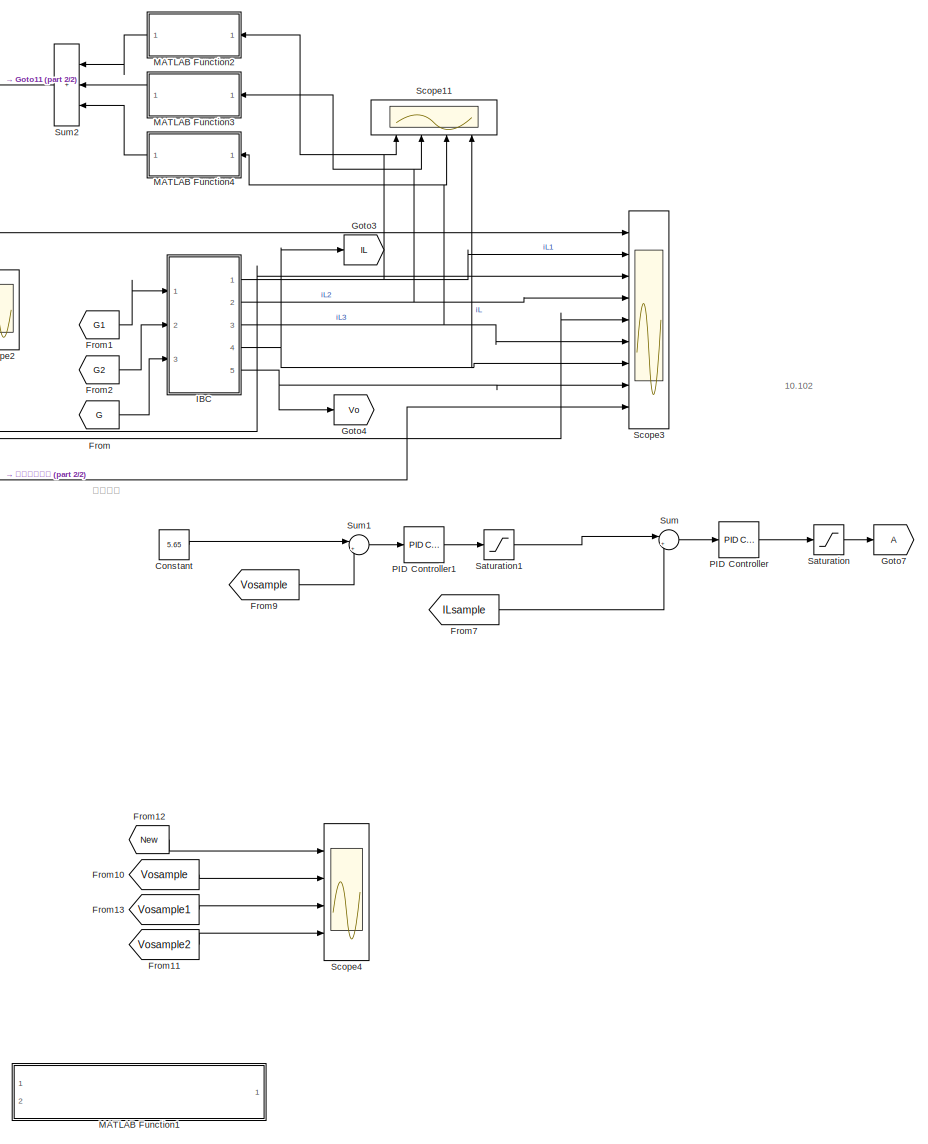
[diagram: root canvas - part 1/2, right side, full height]
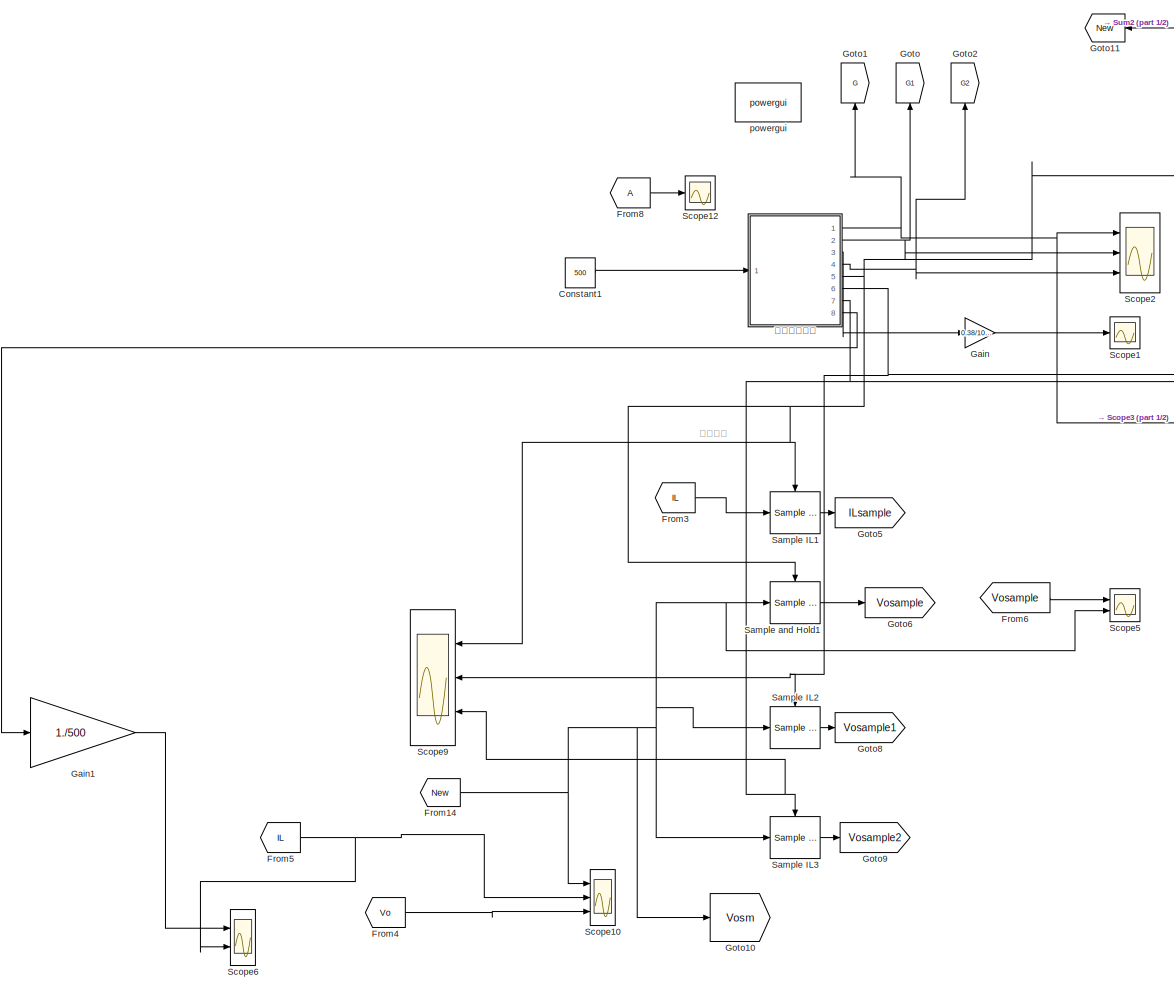
[diagram: root canvas - part 2/2, left side, full height]
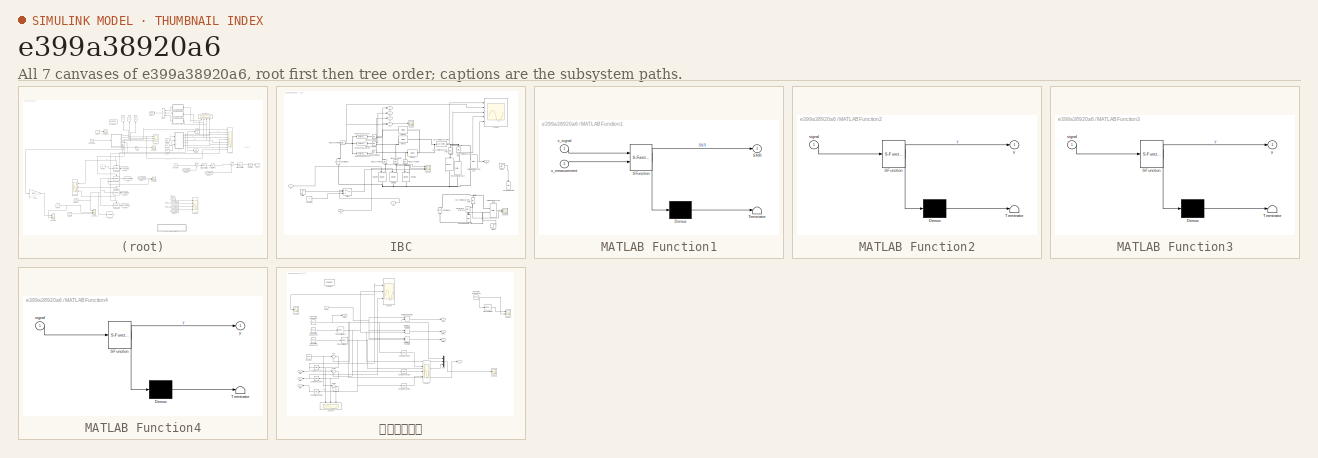
[diagram: thumbnail index - all 7 canvases of the model, root first then tree order]
MODEL slx_e399a38920a6
KIND model
CONFIG AbsTol = auto
CONFIG EnableMultiTasking = off
CONFIG FixedStep = auto
CONFIG InitFcn = Load=2;\nC=220e-6;\nL1=1000e-6;\nL2=1000e-6*(1+normrnd(0,0.05,[1,1]));\nL3=1000e-6*(1+normrnd(0,0.05,[1,1]));\nalp=1-0.5;\nV=2;
CONFIG MaxStep = auto
CONFIG MinStep = auto
CONFIG RelTol = 1e-3
CONFIG SampleTimeConstraint = Unconstrained
CONFIG SolverName = VariableStepAuto
CONFIG StartTime = 0.0
CONFIG StopTime = 0.02
BLOCK [Constant] Constant
  Value = 5.65
BLOCK [Constant] Constant1
  Value = 500
BLOCK [From] From
  GotoTag = G
BLOCK [From] From1
  GotoTag = G1
BLOCK [From] From10
  GotoTag = Vosample
BLOCK [From] From11
  GotoTag = Vosample2
BLOCK [From] From12
  GotoTag = New
  NameLocation = top
BLOCK [From] From13
  GotoTag = Vosample1
BLOCK [From] From14
  GotoTag = New
  NameLocation = top
BLOCK [From] From2
  GotoTag = G2
BLOCK [From] From3
  GotoTag = IL
BLOCK [From] From4
  GotoTag = Vo
BLOCK [From] From5
  GotoTag = IL
BLOCK [From] From6
  GotoTag = Vosample
BLOCK [From] From7
  GotoTag = ILsample
BLOCK [From] From8
BLOCK [From] From9
  GotoTag = Vosample
BLOCK [Gain] Gain
  Gain = 0.38/1000
BLOCK [Gain] Gain1
  Gain = 1./500
BLOCK [Goto] Goto
  GotoTag = G1
  NameLocation = right
BLOCK [Goto] Goto1
  GotoTag = G
  NameLocation = right
BLOCK [Goto] Goto10
  GotoTag = Vosm
BLOCK [Goto] Goto11
  GotoTag = New
  NameLocation = top
BLOCK [Goto] Goto2
  GotoTag = G2
  NameLocation = right
BLOCK [Goto] Goto3
  GotoTag = IL
BLOCK [Goto] Goto4
  GotoTag = Vo
BLOCK [Goto] Goto5
  GotoTag = ILsample
BLOCK [Goto] Goto6
  GotoTag = Vosample
BLOCK [Goto] Goto7
BLOCK [Goto] Goto8
  GotoTag = Vosample1
BLOCK [Goto] Goto9
  GotoTag = Vosample2
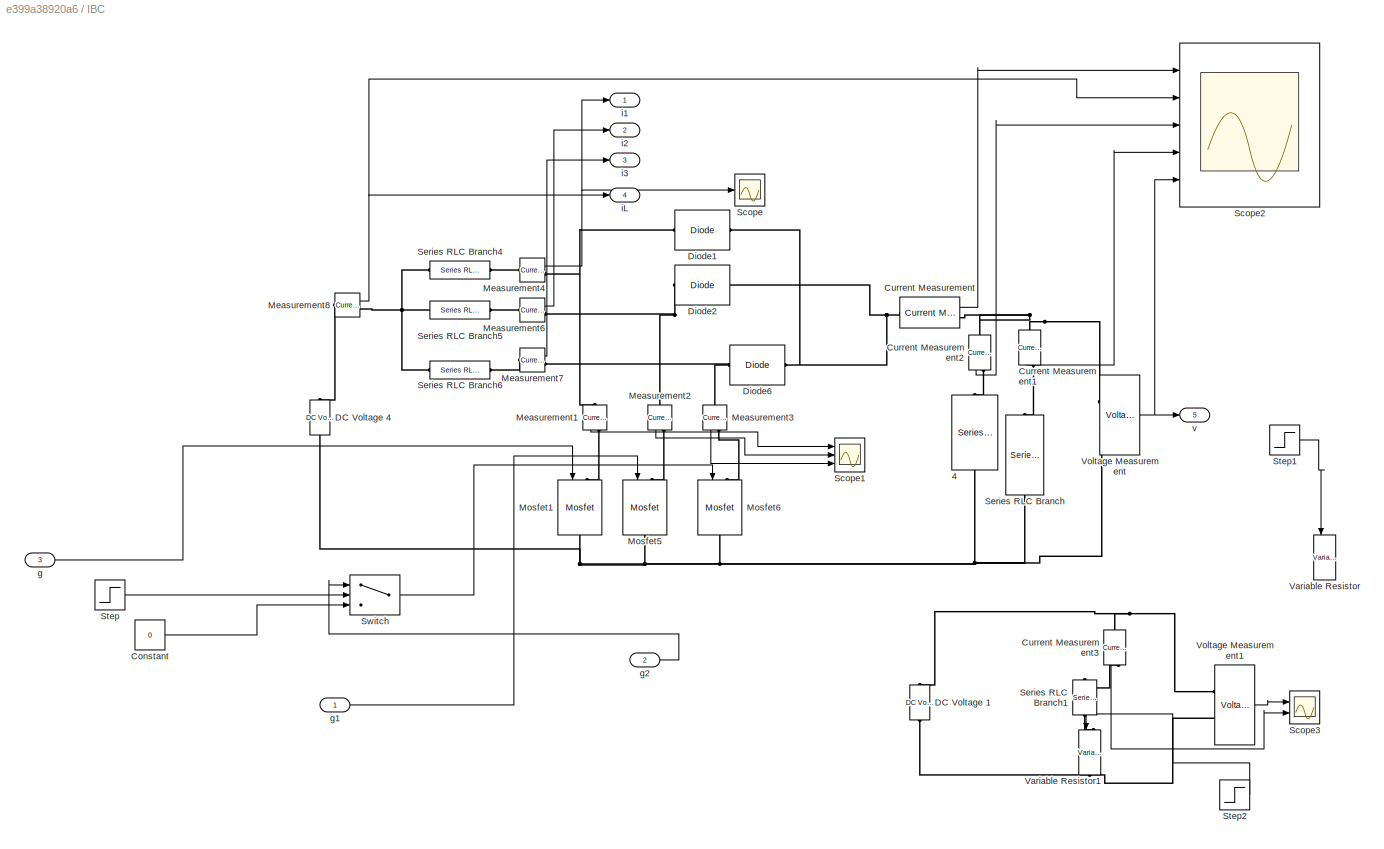
BLOCK [SubSystem] IBC
  Ports = [3, 5]
  RequestExecContextInheritance = off
BLOCK [Reference] IBC/    4  REF=spsSeriesRLCBranchLib/Series RLC Branch
  NameLocation = left
  Ports = [0, 0, 0, 0, 0, 1, 1]
  SourceBlock = spsSeriesRLCBranchLib/Series RLC Branch
  SourceProductBaseCode = PS
  SourceType = Series RLC Branch
BLOCK [Reference] IBC/ Measurement1  REF=spsCurrentMeasurementLib/Current Measurement
  NameLocation = left
  Ports = [0, 1, 0, 0, 0, 1, 1]
  SourceBlock = spsCurrentMeasurementLib/Current Measurement
  SourceProductBaseCode = PS
  SourceType = Current Measurement
BLOCK [Reference] IBC/ Measurement2  REF=spsCurrentMeasurementLib/Current Measurement
  NameLocation = left
  Ports = [0, 1, 0, 0, 0, 1, 1]
  SourceBlock = spsCurrentMeasurementLib/Current Measurement
  SourceProductBaseCode = PS
  SourceType = Current Measurement
BLOCK [Reference] IBC/ Measurement3  REF=spsCurrentMeasurementLib/Current Measurement
  NameLocation = left
  Ports = [0, 1, 0, 0, 0, 1, 1]
  SourceBlock = spsCurrentMeasurementLib/Current Measurement
  SourceProductBaseCode = PS
  SourceType = Current Measurement
BLOCK [Reference] IBC/ Measurement4  REF=spsCurrentMeasurementLib/Current Measurement
  Ports = [0, 1, 0, 0, 0, 1, 1]
  SourceBlock = spsCurrentMeasurementLib/Current Measurement
  SourceProductBaseCode = PS
  SourceType = Current Measurement
BLOCK [Reference] IBC/ Measurement6  REF=spsCurrentMeasurementLib/Current Measurement
  Ports = [0, 1, 0, 0, 0, 1, 1]
  SourceBlock = spsCurrentMeasurementLib/Current Measurement
  SourceProductBaseCode = PS
  SourceType = Current Measurement
BLOCK [Reference] IBC/ Measurement7  REF=spsCurrentMeasurementLib/Current Measurement
  Ports = [0, 1, 0, 0, 0, 1, 1]
  SourceBlock = spsCurrentMeasurementLib/Current Measurement
  SourceProductBaseCode = PS
  SourceType = Current Measurement
BLOCK [Reference] IBC/ Measurement8  REF=spsCurrentMeasurementLib/Current Measurement
  Ports = [0, 1, 0, 0, 0, 1, 1]
  SourceBlock = spsCurrentMeasurementLib/Current Measurement
  SourceProductBaseCode = PS
  SourceType = Current Measurement
BLOCK [Constant] IBC/Constant
  Value = 0
BLOCK [Reference] IBC/Current Measurement  REF=spsCurrentMeasurementLib/Current Measurement
  Ports = [0, 1, 0, 0, 0, 1, 1]
  SourceBlock = spsCurrentMeasurementLib/Current Measurement
  SourceProductBaseCode = PS
  SourceType = Current Measurement
  UserDataPersistent = on
BLOCK [Reference] IBC/Current Measurement1  REF=spsCurrentMeasurementLib/Current Measurement
  NameLocation = left
  Ports = [0, 1, 0, 0, 0, 1, 1]
  SourceBlock = spsCurrentMeasurementLib/Current Measurement
  SourceProductBaseCode = PS
  SourceType = Current Measurement
  UserDataPersistent = on
BLOCK [Reference] IBC/Current Measurement2  REF=spsCurrentMeasurementLib/Current Measurement
  NameLocation = left
  Ports = [0, 1, 0, 0, 0, 1, 1]
  SourceBlock = spsCurrentMeasurementLib/Current Measurement
  SourceProductBaseCode = PS
  SourceType = Current Measurement
  UserDataPersistent = on
BLOCK [Reference] IBC/Current Measurement3  REF=spsCurrentMeasurementLib/Current Measurement
  Commented = on
  NameLocation = left
  Ports = [0, 1, 0, 0, 0, 1, 1]
  SourceBlock = spsCurrentMeasurementLib/Current Measurement
  SourceProductBaseCode = PS
  SourceType = Current Measurement
  UserDataPersistent = on
BLOCK [Reference] IBC/DC Voltage 1  REF=spsDCVoltageSourceLib/DC Voltage Source
  Commented = on
  NameLocation = right
  Ports = [0, 0, 0, 0, 0, 1, 1]
  SourceBlock = spsDCVoltageSourceLib/DC Voltage Source
  SourceProductBaseCode = PS
  SourceType = DC Voltage Source
BLOCK [Reference] IBC/DC Voltage 4  REF=spsDCVoltageSourceLib/DC Voltage Source
  NameLocation = right
  Ports = [0, 0, 0, 0, 0, 1, 1]
  SourceBlock = spsDCVoltageSourceLib/DC Voltage Source
  SourceProductBaseCode = PS
  SourceType = DC Voltage Source
BLOCK [Reference] IBC/Diode1  REF=spsDiodeLib/Diode
  Ports = [0, 0, 0, 0, 0, 1, 1]
  SourceBlock = spsDiodeLib/Diode
  SourceProductBaseCode = PS
  SourceType = Diode
BLOCK [Reference] IBC/Diode2  REF=spsDiodeLib/Diode
  Ports = [0, 0, 0, 0, 0, 1, 1]
  SourceBlock = spsDiodeLib/Diode
  SourceProductBaseCode = PS
  SourceType = Diode
BLOCK [Reference] IBC/Diode6  REF=spsDiodeLib/Diode
  Ports = [0, 0, 0, 0, 0, 1, 1]
  SourceBlock = spsDiodeLib/Diode
  SourceProductBaseCode = PS
  SourceType = Diode
BLOCK [Reference] IBC/Mosfet1  REF=spsMosfetLib/Mosfet
  NameLocation = left
  Ports = [1, 0, 0, 0, 0, 1, 1]
  SourceBlock = spsMosfetLib/Mosfet
  SourceProductBaseCode = PS
  SourceType = Mosfet
BLOCK [Reference] IBC/Mosfet5  REF=spsMosfetLib/Mosfet
  NameLocation = left
  Ports = [1, 0, 0, 0, 0, 1, 1]
  SourceBlock = spsMosfetLib/Mosfet
  SourceProductBaseCode = PS
  SourceType = Mosfet
BLOCK [Reference] IBC/Mosfet6  REF=spsMosfetLib/Mosfet
  NameLocation = left
  Ports = [1, 0, 0, 0, 0, 1, 1]
  SourceBlock = spsMosfetLib/Mosfet
  SourceProductBaseCode = PS
  SourceType = Mosfet
BLOCK [Scope] IBC/Scope
  Floating = off
  NumInputPorts = 1
  Ports = [1]
  ScopeSpecificationString = Simulink.scopes.TimeScopeBlockCfg('CurrentConfiguration', extmgr.ConfigurationSet(extmgr.Configuration('Core','General UI',true),extmgr.Configuration('Core','Source UI',true),extmgr.Configuration('Sources','WiredSimulink',true,'DataLoggingVariableName','ScopeData1'),extmgr.Configuration('Visuals','Time Domain',true,'SerializedDisplays',{struct('MinYLimReal','-0.04996','MaxYLimReal','0.45188','YLab...<+1372ch>
BLOCK [Scope] IBC/Scope1
  Floating = off
  NumInputPorts = 3
  Ports = [3]
  ScopeSpecificationString = Simulink.scopes.TimeScopeBlockCfg('CurrentConfiguration', extmgr.ConfigurationSet(extmgr.Configuration('Core','General UI',true),extmgr.Configuration('Core','Source UI',true),extmgr.Configuration('Sources','WiredSimulink',true,'DataLoggingVariableName','ScopeData1'),extmgr.Configuration('Visuals','Time Domain',true,'SerializedDisplays',{struct('MinYLimReal','-0.05517','MaxYLimReal','0.4966','YLabe...<+2847ch>
BLOCK [Scope] IBC/Scope2
  Floating = off
  NumInputPorts = 5
  Ports = [5]
  ScopeSpecificationString = Simulink.scopes.TimeScopeBlockCfg('CurrentConfiguration', extmgr.ConfigurationSet(extmgr.Configuration('Core','General UI',true,'FigureColor',[0.941176470588235 0.941176470588235 0.941176470588235]),extmgr.Configuration('Core','Source UI',true),extmgr.Configuration('Sources','WiredSimulink',true,'DataLoggingVariableName','ScopeData2'),extmgr.Configuration('Visuals','Time Domain',true,'SerializedDi...<+4920ch>
BLOCK [Scope] IBC/Scope3
  Commented = on
  Floating = off
  NumInputPorts = 2
  Ports = [2]
  ScopeSpecificationString = Simulink.scopes.TimeScopeBlockCfg('CurrentConfiguration', extmgr.ConfigurationSet(extmgr.Configuration('Core','General UI',true),extmgr.Configuration('Core','Source UI',true),extmgr.Configuration('Sources','WiredSimulink',true,'DataLoggingVariableName','ScopeData1'),extmgr.Configuration('Visuals','Time Domain',true,'SerializedDisplays',{struct('MinYLimReal','1.74989','MaxYLimReal','4.25001','YLabe...<+1759ch>
BLOCK [Reference] IBC/Series RLC Branch  REF=spsSeriesRLCBranchLib/Series RLC Branch
  NameLocation = left
  Ports = [0, 0, 0, 0, 0, 1, 1]
  SourceBlock = spsSeriesRLCBranchLib/Series RLC Branch
  SourceProductBaseCode = PS
  SourceType = Series RLC Branch
BLOCK [Reference] IBC/Series RLC Branch1  REF=spsSeriesRLCBranchLib/Series RLC Branch
  Commented = on
  NameLocation = left
  Ports = [0, 0, 0, 0, 0, 1, 1]
  SourceBlock = spsSeriesRLCBranchLib/Series RLC Branch
  SourceProductBaseCode = PS
  SourceType = Series RLC Branch
BLOCK [Reference] IBC/Series RLC Branch4  REF=spsSeriesRLCBranchLib/Series RLC Branch
  Ports = [0, 0, 0, 0, 0, 1, 1]
  SourceBlock = spsSeriesRLCBranchLib/Series RLC Branch
  SourceProductBaseCode = PS
  SourceType = Series RLC Branch
BLOCK [Reference] IBC/Series RLC Branch5  REF=spsSeriesRLCBranchLib/Series RLC Branch
  Ports = [0, 0, 0, 0, 0, 1, 1]
  SourceBlock = spsSeriesRLCBranchLib/Series RLC Branch
  SourceProductBaseCode = PS
  SourceType = Series RLC Branch
BLOCK [Reference] IBC/Series RLC Branch6  REF=spsSeriesRLCBranchLib/Series RLC Branch
  Ports = [0, 0, 0, 0, 0, 1, 1]
  SourceBlock = spsSeriesRLCBranchLib/Series RLC Branch
  SourceProductBaseCode = PS
  SourceType = Series RLC Branch
BLOCK [Step] IBC/Step
  After = 0
  Before = 1
  SampleTime = 0
  Time = 0.01
BLOCK [Step] IBC/Step1
  After = 2
  Before = 1
  Commented = on
  SampleTime = 0
  Time = 0.009
BLOCK [Step] IBC/Step2
  After = 2
  Before = 1
  Commented = on
  SampleTime = 0
  Time = 0.008
BLOCK [Switch] IBC/Switch
  Criteria = u2 > Threshold
  InputSameDT = off
  SaturateOnIntegerOverflow = off
  Threshold = 0.5
BLOCK [Reference] IBC/Variable Resistor  REF=spsVariableResistorLib/Variable Resistor
  Commented = on
  NameLocation = left
  Ports = [1, 0, 0, 0, 0, 1, 1]
  SourceBlock = spsVariableResistorLib/Variable Resistor
  SourceProductBaseCode = PS
  SourceType = Variable Resistor
BLOCK [Reference] IBC/Variable Resistor1  REF=spsVariableResistorLib/Variable Resistor
  Commented = on
  NameLocation = left
  Ports = [1, 0, 0, 0, 0, 1, 1]
  SourceBlock = spsVariableResistorLib/Variable Resistor
  SourceProductBaseCode = PS
  SourceType = Variable Resistor
BLOCK [Reference] IBC/Voltage Measurement  REF=spsVoltageMeasurementLib/Voltage Measurement
  Ports = [0, 1, 0, 0, 0, 2]
  SourceBlock = spsVoltageMeasurementLib/Voltage Measurement
  SourceProductBaseCode = PS
  SourceType = Voltage Measurement
  UserDataPersistent = on
BLOCK [Reference] IBC/Voltage Measurement1  REF=spsVoltageMeasurementLib/Voltage Measurement
  Commented = on
  Ports = [0, 1, 0, 0, 0, 2]
  SourceBlock = spsVoltageMeasurementLib/Voltage Measurement
  SourceProductBaseCode = PS
  SourceType = Voltage Measurement
  UserDataPersistent = on
BLOCK [Inport] IBC/g
  Port = 3
BLOCK [Inport] IBC/g1
BLOCK [Inport] IBC/g2
  Port = 2
BLOCK [Outport] IBC/i1
BLOCK [Outport] IBC/i2
  Port = 2
BLOCK [Outport] IBC/i3
  Port = 3
BLOCK [Outport] IBC/iL
  Port = 4
BLOCK [Outport] IBC/v
  Port = 5
BLOCK [SubSystem] MATLAB Function1
  Commented = on
  ErrorFcn = Stateflow.Translate.translate
  PermitHierarchicalResolution = ExplicitOnly
  Ports = [2, 1]
  RequestExecContextInheritance = off
  SFBlockType = MATLAB Function
  TreatAsAtomicUnit = on
BLOCK [Demux] MATLAB Function1/ Demux 
  Outputs = 1
  Ports = [1, 1]
BLOCK [S-Function] MATLAB Function1/ SFunction 
  EnableBusSupport = on
  FunctionName = sf_sfun
  PortCounts = [2 2]
  Ports = [2, 2]
  SFcnIsStateOwnerBlock = off
  SFunctionDeploymentMode = off
  Tag = Stateflow S-Function 1
BLOCK [Terminator] MATLAB Function1/ Terminator 
BLOCK [Outport] MATLAB Function1/SNR
BLOCK [Inport] MATLAB Function1/x_measurement
  Port = 2
BLOCK [Inport] MATLAB Function1/x_signal
BLOCK [SubSystem] MATLAB Function2
  Commented = through
  ErrorFcn = Stateflow.Translate.translate
  NameLocation = top
  PermitHierarchicalResolution = ExplicitOnly
  Ports = [1, 1]
  RequestExecContextInheritance = off
  SFBlockType = MATLAB Function
  TreatAsAtomicUnit = on
BLOCK [Demux] MATLAB Function2/ Demux 
  Outputs = 1
  Ports = [1, 1]
BLOCK [S-Function] MATLAB Function2/ SFunction 
  EnableBusSupport = on
  FunctionName = sf_sfun
  PortCounts = [1 2]
  Ports = [1, 2]
  SFcnIsStateOwnerBlock = off
  SFunctionDeploymentMode = off
  Tag = Stateflow S-Function 3
BLOCK [Terminator] MATLAB Function2/ Terminator 
BLOCK [Inport] MATLAB Function2/signal
BLOCK [Outport] MATLAB Function2/y
BLOCK [SubSystem] MATLAB Function3
  Commented = through
  ErrorFcn = Stateflow.Translate.translate
  NameLocation = top
  PermitHierarchicalResolution = ExplicitOnly
  Ports = [1, 1]
  RequestExecContextInheritance = off
  SFBlockType = MATLAB Function
  TreatAsAtomicUnit = on
BLOCK [Demux] MATLAB Function3/ Demux 
  Outputs = 1
  Ports = [1, 1]
BLOCK [S-Function] MATLAB Function3/ SFunction 
  EnableBusSupport = on
  FunctionName = sf_sfun
  PortCounts = [1 2]
  Ports = [1, 2]
  SFcnIsStateOwnerBlock = off
  SFunctionDeploymentMode = off
  Tag = Stateflow S-Function 4
BLOCK [Terminator] MATLAB Function3/ Terminator 
BLOCK [Inport] MATLAB Function3/signal
BLOCK [Outport] MATLAB Function3/y
BLOCK [SubSystem] MATLAB Function4
  Commented = through
  ErrorFcn = Stateflow.Translate.translate
  NameLocation = top
  PermitHierarchicalResolution = ExplicitOnly
  Ports = [1, 1]
  RequestExecContextInheritance = off
  SFBlockType = MATLAB Function
  TreatAsAtomicUnit = on
BLOCK [Demux] MATLAB Function4/ Demux 
  Outputs = 1
  Ports = [1, 1]
BLOCK [S-Function] MATLAB Function4/ SFunction 
  EnableBusSupport = on
  FunctionName = sf_sfun
  PortCounts = [1 2]
  Ports = [1, 2]
  SFcnIsStateOwnerBlock = off
  SFunctionDeploymentMode = off
  Tag = Stateflow S-Function 5
BLOCK [Terminator] MATLAB Function4/ Terminator 
BLOCK [Inport] MATLAB Function4/signal
BLOCK [Outport] MATLAB Function4/y
BLOCK [Reference] PID Controller  REF=pid_lib/PID Controller
  Ports = [1, 1]
  SourceBlock = pid_lib/PID Controller
  SourceProductBaseCode = SL
  SourceType = PID 1dof
BLOCK [Reference] PID Controller1  REF=pid_lib/PID Controller
  Ports = [1, 1]
  SourceBlock = pid_lib/PID Controller
  SourceProductBaseCode = SL
  SourceType = PID 1dof
BLOCK [Reference] Sample IL1  REF=dspsigops/Sample
and Hold
  Ports = [1, 1, 0, 1]
  SourceBlock = dspsigops/Sample\nand Hold
  SourceProductBaseCode = DS
  SourceType = Sample and Hold
BLOCK [Reference] Sample IL2  REF=dspsigops/Sample
and Hold
  Ports = [1, 1, 0, 1]
  SourceBlock = dspsigops/Sample\nand Hold
  SourceProductBaseCode = DS
  SourceType = Sample and Hold
BLOCK [Reference] Sample IL3  REF=dspsigops/Sample
and Hold
  Ports = [1, 1, 0, 1]
  SourceBlock = dspsigops/Sample\nand Hold
  SourceProductBaseCode = DS
  SourceType = Sample and Hold
BLOCK [Reference] Sample and Hold1  REF=dspsigops/Sample
and Hold
  Ports = [1, 1, 0, 1]
  SourceBlock = dspsigops/Sample\nand Hold
  SourceProductBaseCode = DS
  SourceType = Sample and Hold
BLOCK [Saturate] Saturation
  LowerLimit = 100
  UpperLimit = 900
BLOCK [Saturate] Saturation1
  LowerLimit = 0
  UpperLimit = 5
BLOCK [Scope] Scope1
  Floating = off
  NumInputPorts = 1
  Ports = [1]
  ScopeSpecificationString = Simulink.scopes.TimeScopeBlockCfg('CurrentConfiguration', extmgr.ConfigurationSet(extmgr.Configuration('Core','General UI',true),extmgr.Configuration('Core','Source UI',true),extmgr.Configuration('Sources','WiredSimulink',true,'DataLoggingVariableName','Ig','DataLogging',true),extmgr.Configuration('Visuals','Time Domain',true,'SerializedDisplays',{struct('MinYLimReal','-0.0475','MaxYLimReal','0.42...<+1499ch>
BLOCK [Scope] Scope10
  Floating = off
  NumInputPorts = 3
  Ports = [3]
  ScopeSpecificationString = Simulink.scopes.TimeScopeBlockCfg('CurrentConfiguration', extmgr.ConfigurationSet(extmgr.Configuration('Core','General UI',true,'FigureColor',[0.831372549019608 0.815686274509804 0.784313725490196]),extmgr.Configuration('Core','Source UI',true),extmgr.Configuration('Sources','WiredSimulink',true,'DataLoggingVariableName','Voutnoise','DataLogging',true),extmgr.Configuration('Visuals','Time Domain',...<+2402ch>
BLOCK [Scope] Scope11
  Floating = off
  NameLocation = right
  NumInputPorts = 4
  Ports = [4]
  ScopeSpecificationString = Simulink.scopes.TimeScopeBlockCfg('CurrentConfiguration', extmgr.ConfigurationSet(extmgr.Configuration('Core','General UI',true,'FigureColor',[0.941176470588235 0.941176470588235 0.941176470588235]),extmgr.Configuration('Core','Source UI',true),extmgr.Configuration('Sources','WiredSimulink',true,'DataLoggingVariableName','per_phase_current','DataLogging',true),extmgr.Configuration('Visuals','Time ...<+2592ch>
BLOCK [Scope] Scope12
  Floating = off
  NumInputPorts = 1
  Ports = [1]
  ScopeSpecificationString = Simulink.scopes.TimeScopeBlockCfg('CurrentConfiguration', extmgr.ConfigurationSet(extmgr.Configuration('Core','General UI',true),extmgr.Configuration('Core','Source UI',true),extmgr.Configuration('Sources','WiredSimulink',true,'DataLoggingVariableName','ScopeData1'),extmgr.Configuration('Visuals','Time Domain',true,'SerializedDisplays',{struct('MinYLimReal','-1.81226','MaxYLimReal','16.31034','YLa...<+1486ch>
BLOCK [Scope] Scope2
  Floating = off
  NumInputPorts = 3
  Ports = [3]
  ScopeSpecificationString = Simulink.scopes.TimeScopeBlockCfg('CurrentConfiguration', extmgr.ConfigurationSet(extmgr.Configuration('Core','General UI',true),extmgr.Configuration('Core','Source UI',true),extmgr.Configuration('Sources','WiredSimulink',true,'DataLoggingVariableName','ScopeData1'),extmgr.Configuration('Visuals','Time Domain',true,'SerializedDisplays',{struct('MinYLimReal','-0.125','MaxYLimReal','1.125','YLabelRe...<+3140ch>
BLOCK [Scope] Scope3
  Floating = off
  NumInputPorts = 9
  Ports = [9]
  ScopeSpecificationString = Simulink.scopes.TimeScopeBlockCfg('CurrentConfiguration', extmgr.ConfigurationSet(extmgr.Configuration('Core','General UI',true,'FigureColor',[1 1 1]),extmgr.Configuration('Core','Source UI',true),extmgr.Configuration('Sources','WiredSimulink',true,'DataLoggingVariableName','Io','DataLogging',true),extmgr.Configuration('Visuals','Time Domain',true,'TimeAxisLabels','All','SerializedDisplays',{struc...<+2872ch>
BLOCK [Scope] Scope4
  Floating = off
  NumInputPorts = 4
  Ports = [4]
  ScopeSpecificationString = Simulink.scopes.TimeScopeBlockCfg('CurrentConfiguration', extmgr.ConfigurationSet(extmgr.Configuration('Core','General UI',true,'FigureColor',[0.941176470588235 0.941176470588235 0.941176470588235]),extmgr.Configuration('Core','Source UI',true),extmgr.Configuration('Sources','WiredSimulink',true,'DataLoggingVariableName','ILsample','DataLogging',true),extmgr.Configuration('Visuals','Time Domain',t...<+2375ch>
BLOCK [Scope] Scope5
  Floating = off
  NumInputPorts = 2
  Ports = [2]
  ScopeSpecificationString = Simulink.scopes.TimeScopeBlockCfg('CurrentConfiguration', extmgr.ConfigurationSet(extmgr.Configuration('Core','General UI',true),extmgr.Configuration('Core','Source UI',true),extmgr.Configuration('Sources','WiredSimulink',true,'DataLoggingVariableName','ScopeData3'),extmgr.Configuration('Visuals','Time Domain',true,'SerializedDisplays',{struct('MinYLimReal','-1.81226','MaxYLimReal','16.31034','YLa...<+1486ch>
BLOCK [Scope] Scope6
  Floating = off
  NumInputPorts = 2
  Ports = [2]
  ScopeSpecificationString = Simulink.scopes.TimeScopeBlockCfg('CurrentConfiguration', extmgr.ConfigurationSet(extmgr.Configuration('Core','General UI',true,'FigureColor',[0.831372549019608 0.815686274509804 0.784313725490196]),extmgr.Configuration('Core','Source UI',true),extmgr.Configuration('Sources','WiredSimulink',true,'DataLoggingVariableName','ScopeData1','DataLogging',true),extmgr.Configuration('Visuals','Time Domain'...<+3189ch>
BLOCK [Scope] Scope9
  Floating = off
  NameLocation = top
  NumInputPorts = 3
  Ports = [3]
  ScopeSpecificationString = Simulink.scopes.TimeScopeBlockCfg('CurrentConfiguration', extmgr.ConfigurationSet(extmgr.Configuration('Core','General UI',true,'FigureColor',[0.941176470588235 0.941176470588235 0.941176470588235]),extmgr.Configuration('Core','Source UI',true),extmgr.Configuration('Sources','WiredSimulink',true,'DataLoggingVariableName','ScopeData6'),extmgr.Configuration('Visuals','Time Domain',true,'SerializedDi...<+3328ch>
BLOCK [Sum] Sum
  Inputs = |+-
  Ports = [2, 1]
BLOCK [Sum] Sum1
  Inputs = |+-
  Ports = [2, 1]
BLOCK [Sum] Sum2
  IconShape = rectangular
  Inputs = |+++
  NameLocation = top
  Ports = [3, 1]
BLOCK [Reference] powergui  REF=spspowerguiLib/powergui
  Ports = []
  Priority = 1
  SourceBlock = spspowerguiLib/powergui
  SourceProductBaseCode = PS
  SourceType = PSB option menu block
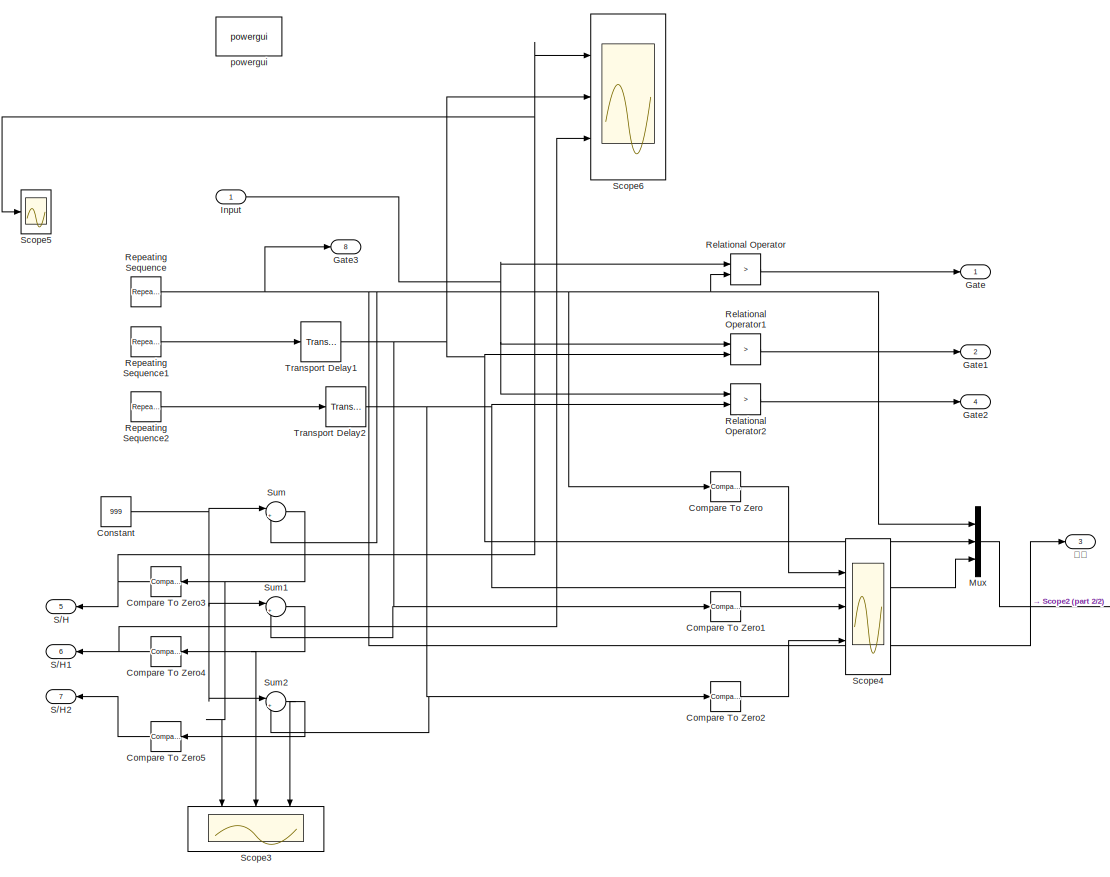
[diagram: 命令信号生产 - part 1/2, most of the canvas]
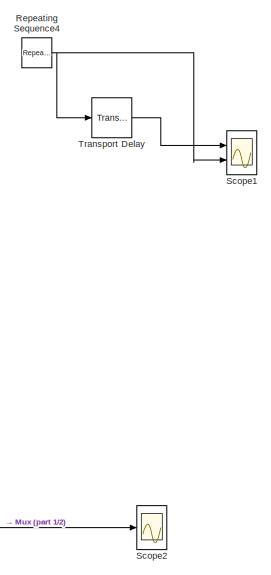
[diagram: 命令信号生产 - part 2/2, middle right region]
BLOCK [SubSystem] 命令信号生产
  Ports = [1, 8]
  RequestExecContextInheritance = off
BLOCK [Reference] 命令信号生产/Compare To Zero  REF=simulink/Logic and Bit
Operations/Compare
To Zero
  Ports = [1, 1]
  SourceBlock = simulink/Logic and Bit\nOperations/Compare\nTo Zero
  SourceProductBaseCode = SL
  SourceType = Compare To Zero
BLOCK [Reference] 命令信号生产/Compare To Zero1  REF=simulink/Logic and Bit
Operations/Compare
To Zero
  Ports = [1, 1]
  SourceBlock = simulink/Logic and Bit\nOperations/Compare\nTo Zero
  SourceProductBaseCode = SL
  SourceType = Compare To Zero
BLOCK [Reference] 命令信号生产/Compare To Zero2  REF=simulink/Logic and Bit
Operations/Compare
To Zero
  Ports = [1, 1]
  SourceBlock = simulink/Logic and Bit\nOperations/Compare\nTo Zero
  SourceProductBaseCode = SL
  SourceType = Compare To Zero
BLOCK [Reference] 命令信号生产/Compare To Zero3  REF=simulink/Logic and Bit
Operations/Compare
To Zero
  NameLocation = top
  Ports = [1, 1]
  SourceBlock = simulink/Logic and Bit\nOperations/Compare\nTo Zero
  SourceProductBaseCode = SL
  SourceType = Compare To Zero
BLOCK [Reference] 命令信号生产/Compare To Zero4  REF=simulink/Logic and Bit
Operations/Compare
To Zero
  NameLocation = top
  Ports = [1, 1]
  SourceBlock = simulink/Logic and Bit\nOperations/Compare\nTo Zero
  SourceProductBaseCode = SL
  SourceType = Compare To Zero
BLOCK [Reference] 命令信号生产/Compare To Zero5  REF=simulink/Logic and Bit
Operations/Compare
To Zero
  NameLocation = top
  Ports = [1, 1]
  SourceBlock = simulink/Logic and Bit\nOperations/Compare\nTo Zero
  SourceProductBaseCode = SL
  SourceType = Compare To Zero
BLOCK [Constant] 命令信号生产/Constant
  Value = 999
BLOCK [Outport] 命令信号生产/Gate
BLOCK [Outport] 命令信号生产/Gate1
  Port = 2
BLOCK [Outport] 命令信号生产/Gate2
  Port = 4
BLOCK [Outport] 命令信号生产/Gate3
  Port = 8
BLOCK [Inport] 命令信号生产/Input
BLOCK [Mux] 命令信号生产/Mux
  DisplayOption = bar
  Inputs = 3
  Ports = [3, 1]
BLOCK [RelationalOperator] 命令信号生产/Relational Operator
  InputSameDT = off
  Operator = >
  OutDataTypeStr = boolean
  Ports = [2, 1]
  RndMeth = Simplest
BLOCK [RelationalOperator] 命令信号生产/Relational Operator1
  InputSameDT = off
  Operator = >
  OutDataTypeStr = boolean
  Ports = [2, 1]
  RndMeth = Simplest
BLOCK [RelationalOperator] 命令信号生产/Relational Operator2
  InputSameDT = off
  Operator = >
  OutDataTypeStr = boolean
  Ports = [2, 1]
  RndMeth = Simplest
BLOCK [Reference] 命令信号生产/Repeating Sequence  REF=simulink/Sources/Repeating
Sequence
  Ports = [0, 1]
  SourceBlock = simulink/Sources/Repeating\nSequence
  SourceProductBaseCode = SL
  SourceType = Repeating table
BLOCK [Reference] 命令信号生产/Repeating Sequence1  REF=simulink/Sources/Repeating
Sequence
  Ports = [0, 1]
  SourceBlock = simulink/Sources/Repeating\nSequence
  SourceProductBaseCode = SL
  SourceType = Repeating table
BLOCK [Reference] 命令信号生产/Repeating Sequence2  REF=simulink/Sources/Repeating
Sequence
  Ports = [0, 1]
  SourceBlock = simulink/Sources/Repeating\nSequence
  SourceProductBaseCode = SL
  SourceType = Repeating table
BLOCK [Reference] 命令信号生产/Repeating Sequence4  REF=simulink/Sources/Repeating
Sequence
  Ports = [0, 1]
  SourceBlock = simulink/Sources/Repeating\nSequence
  SourceProductBaseCode = SL
  SourceType = Repeating table
BLOCK [Outport] 命令信号生产/S//H
  NameLocation = top
  Port = 5
BLOCK [Outport] 命令信号生产/S//H1
  NameLocation = top
  Port = 6
BLOCK [Outport] 命令信号生产/S//H2
  NameLocation = top
  Port = 7
BLOCK [Scope] 命令信号生产/Scope1
  Floating = off
  NumInputPorts = 2
  Ports = [2]
  ScopeSpecificationString = Simulink.scopes.TimeScopeBlockCfg('CurrentConfiguration', extmgr.ConfigurationSet(extmgr.Configuration('Core','General UI',true),extmgr.Configuration('Core','Source UI',true),extmgr.Configuration('Sources','WiredSimulink',true,'DataLoggingVariableName','ScopeData3'),extmgr.Configuration('Visuals','Time Domain',true,'SerializedDisplays',{struct('MinYLimReal','-125.00000','MaxYLimReal','1125.00000',...<+1897ch>
BLOCK [Scope] 命令信号生产/Scope2
  Floating = off
  NumInputPorts = 1
  Ports = [1]
  ScopeSpecificationString = Simulink.scopes.TimeScopeBlockCfg('CurrentConfiguration', extmgr.ConfigurationSet(extmgr.Configuration('Core','General UI',true),extmgr.Configuration('Core','Source UI',true),extmgr.Configuration('Sources','WiredSimulink',true,'DataLoggingVariableName','ScopeData1'),extmgr.Configuration('Visuals','Time Domain',true,'SerializedDisplays',{struct('MinYLimReal','-125.00000','MaxYLimReal','1125.00000',...<+1897ch>
BLOCK [Scope] 命令信号生产/Scope3
  Floating = off
  NameLocation = left
  NumInputPorts = 3
  Ports = [3]
  ScopeSpecificationString = Simulink.scopes.TimeScopeBlockCfg('CurrentConfiguration', extmgr.ConfigurationSet(extmgr.Configuration('Core','General UI',true,'FigureColor',[0.941176470588235 0.941176470588235 0.941176470588235]),extmgr.Configuration('Core','Source UI',true),extmgr.Configuration('Sources','WiredSimulink',true,'DataLoggingVariableName','ScopeData8'),extmgr.Configuration('Visuals','Time Domain',true,'SerializedDi...<+1805ch>
BLOCK [Scope] 命令信号生产/Scope4
  Floating = off
  NumInputPorts = 3
  Ports = [3]
  ScopeSpecificationString = Simulink.scopes.TimeScopeBlockCfg('CurrentConfiguration', extmgr.ConfigurationSet(extmgr.Configuration('Core','General UI',true,'FigureColor',[0.941176470588235 0.941176470588235 0.941176470588235]),extmgr.Configuration('Core','Source UI',true),extmgr.Configuration('Sources','WiredSimulink',true,'DataLoggingVariableName','ScopeData7'),extmgr.Configuration('Visuals','Time Domain',true,'SerializedDi...<+1824ch>
BLOCK [Scope] 命令信号生产/Scope5
  Floating = off
  NumInputPorts = 1
  Ports = [1]
  ScopeSpecificationString = Simulink.scopes.TimeScopeBlockCfg('CurrentConfiguration', extmgr.ConfigurationSet(extmgr.Configuration('Core','General UI',true),extmgr.Configuration('Core','Source UI',true),extmgr.Configuration('Sources','WiredSimulink',true,'DataLoggingVariableName','ScopeData1'),extmgr.Configuration('Visuals','Time Domain',true,'SerializedDisplays',{struct('MinYLimReal','-0.125','MaxYLimReal','1.125','YLabelRe...<+1813ch>
BLOCK [Scope] 命令信号生产/Scope6
  Floating = off
  NumInputPorts = 3
  Ports = [3]
  ScopeSpecificationString = Simulink.scopes.TimeScopeBlockCfg('CurrentConfiguration', extmgr.ConfigurationSet(extmgr.Configuration('Core','General UI',true),extmgr.Configuration('Core','Source UI',true),extmgr.Configuration('Sources','WiredSimulink',true,'DataLoggingVariableName','ScopeData2'),extmgr.Configuration('Visuals','Time Domain',true,'SerializedDisplays',{struct('MinYLimReal','-0.125','MaxYLimReal','1.125','YLabelRe...<+3937ch>
BLOCK [Sum] 命令信号生产/Sum
  Inputs = |+-
  Ports = [2, 1]
BLOCK [Sum] 命令信号生产/Sum1
  Inputs = |+-
  Ports = [2, 1]
BLOCK [Sum] 命令信号生产/Sum2
  Inputs = |+-
  Ports = [2, 1]
BLOCK [TransportDelay] 命令信号生产/Transport Delay
  DelayTime = 1./100e3./3
  Ports = [1, 1]
BLOCK [TransportDelay] 命令信号生产/Transport Delay1
  DelayTime = 1./Fs./3
  Ports = [1, 1]
BLOCK [TransportDelay] 命令信号生产/Transport Delay2
  DelayTime = 2./Fs./3
  Ports = [1, 1]
BLOCK [Reference] 命令信号生产/powergui  REF=spspowerguiLib/powergui
  Ports = []
  Priority = 1
  SourceBlock = spspowerguiLib/powergui
  SourceProductBaseCode = PS
  SourceType = PSB option menu block
BLOCK [Outport] 命令信号生产/载波
  Port = 3
ANNOTATION (root): 10.102
ANNOTATION (root): 控制结构
ANNOTATION (root): 采样结构
LINE Constant1:1 -> 命令信号生产:1
LINE Constant:1 -> Sum1:1
LINE From10:1 -> Scope4:2
LINE From11:1 -> Scope4:4
LINE From12:1 -> Scope4:1
LINE From13:1 -> Scope4:3
NET From14:1 -> Goto10:1, Sample IL2:1, Sample IL3:1, Sample and Hold1:1, Scope10:1, Scope5:2
LINE From1:1 -> IBC:1
LINE From2:1 -> IBC:2
LINE From3:1 -> Sample IL1:1
LINE From4:1 -> Scope10:3
NET From5:1 -> Scope10:2, Scope6:2
LINE From6:1 -> Scope5:1
LINE From7:1 -> Sum:2
LINE From8:1 -> Scope12:1
LINE From9:1 -> Sum1:2
LINE From:1 -> IBC:3
LINE Gain1:1 -> Scope6:1
LINE Gain:1 -> Scope1:1
LINE IBC/ Measurement1:1 -> IBC/Scope1:1
LINE IBC/ Measurement2:1 -> IBC/Scope1:2
LINE IBC/ Measurement3:1 -> IBC/Scope1:3
NET IBC/ Measurement4:1 -> IBC/Scope:1, IBC/i1:1
LINE IBC/ Measurement6:1 -> IBC/i2:1
LINE IBC/ Measurement7:1 -> IBC/i3:1
NET IBC/ Measurement8:1 -> IBC/Scope2:2, IBC/iL:1
LINE IBC/Constant:1 -> IBC/Switch:3
LINE IBC/Current Measurement1:1 -> IBC/Scope2:4
LINE IBC/Current Measurement2:1 -> IBC/Scope2:3
LINE IBC/Current Measurement3:1 -> IBC/Scope3:2
LINE IBC/Current Measurement:1 -> IBC/Scope2:1
LINE IBC/Step1:1 -> IBC/Variable Resistor:1
LINE IBC/Step2:1 -> IBC/Variable Resistor1:1
LINE IBC/Step:1 -> IBC/Switch:2
LINE IBC/Switch:1 -> IBC/Mosfet6:1
LINE IBC/Voltage Measurement1:1 -> IBC/Scope3:1
NET IBC/Voltage Measurement:1 -> IBC/Scope2:5, IBC/v:1
LINE IBC/g1:1 -> IBC/Mosfet5:1
LINE IBC/g2:1 -> IBC/Switch:1
LINE IBC/g:1 -> IBC/Mosfet1:1
NET IBC:1 -> MATLAB Function2:1, Scope11:1, Scope3:2
NET IBC:2 -> MATLAB Function3:1, Scope11:2, Scope3:4
NET IBC:3 -> MATLAB Function4:1, Scope11:3, Scope3:6
NET IBC:4 -> Goto3:1, Scope11:4, Scope3:7
NET IBC:5 -> Goto4:1, Scope3:8
LINE MATLAB Function2:1 -> Sum2:1
LINE MATLAB Function3:1 -> Sum2:2
LINE MATLAB Function4:1 -> Sum2:3
LINE PID Controller1:1 -> Saturation1:1
LINE PID Controller:1 -> Saturation:1
LINE Sample IL1:1 -> Goto5:1
LINE Sample IL2:1 -> Goto8:1
LINE Sample IL3:1 -> Goto9:1
LINE Sample and Hold1:1 -> Goto6:1
LINE Saturation1:1 -> Sum:1
LINE Saturation:1 -> Goto7:1
LINE Sum1:1 -> PID Controller1:1
LINE Sum2:1 -> Goto11:1
LINE Sum:1 -> PID Controller:1
LINE 命令信号生产/Compare To Zero1:1 -> 命令信号生产/Scope4:2
LINE 命令信号生产/Compare To Zero2:1 -> 命令信号生产/Scope4:3
NET 命令信号生产/Compare To Zero3:1 -> 命令信号生产/S//H:1, 命令信号生产/Scope5:1, 命令信号生产/Scope6:1
NET 命令信号生产/Compare To Zero4:1 -> 命令信号生产/S//H1:1, 命令信号生产/Scope6:3
LINE 命令信号生产/Compare To Zero5:1 -> 命令信号生产/S//H2:1
LINE 命令信号生产/Compare To Zero:1 -> 命令信号生产/Scope4:1
NET 命令信号生产/Constant:1 -> 命令信号生产/Sum1:1, 命令信号生产/Sum2:1, 命令信号生产/Sum:1
NET 命令信号生产/Input:1 -> 命令信号生产/Relational Operator1:1, 命令信号生产/Relational Operator2:1, 命令信号生产/Relational Operator:1
LINE 命令信号生产/Mux:1 -> 命令信号生产/Scope2:1
LINE 命令信号生产/Relational Operator1:1 -> 命令信号生产/Gate1:1
LINE 命令信号生产/Relational Operator2:1 -> 命令信号生产/Gate2:1
LINE 命令信号生产/Relational Operator:1 -> 命令信号生产/Gate:1
LINE 命令信号生产/Repeating Sequence1:1 -> 命令信号生产/Transport Delay1:1
LINE 命令信号生产/Repeating Sequence2:1 -> 命令信号生产/Transport Delay2:1
NET 命令信号生产/Repeating Sequence4:1 -> 命令信号生产/Scope1:2, 命令信号生产/Transport Delay:1
NET 命令信号生产/Repeating Sequence:1 -> 命令信号生产/Compare To Zero:1, 命令信号生产/Gate3:1, 命令信号生产/Mux:1, 命令信号生产/Relational Operator:2, 命令信号生产/Sum:2, 命令信号生产/载波:1
NET 命令信号生产/Sum1:1 -> 命令信号生产/Compare To Zero4:1, 命令信号生产/Scope3:2
NET 命令信号生产/Sum2:1 -> 命令信号生产/Compare To Zero5:1, 命令信号生产/Scope3:3
NET 命令信号生产/Sum:1 -> 命令信号生产/Compare To Zero3:1, 命令信号生产/Scope3:1
NET 命令信号生产/Transport Delay1:1 -> 命令信号生产/Compare To Zero1:1, 命令信号生产/Mux:2, 命令信号生产/Relational Operator1:2, 命令信号生产/Scope6:2, 命令信号生产/Sum1:2
NET 命令信号生产/Transport Delay2:1 -> 命令信号生产/Compare To Zero2:1, 命令信号生产/Mux:3, 命令信号生产/Relational Operator2:2, 命令信号生产/Sum2:2
LINE 命令信号生产/Transport Delay:1 -> 命令信号生产/Scope1:1
NET 命令信号生产:1 -> Goto1:1, Scope2:1, Scope3:9
NET 命令信号生产:2 -> Goto:1, Scope2:2
LINE 命令信号生产:3 -> Gain:1
NET 命令信号生产:4 -> Goto2:1, Scope2:3
NET 命令信号生产:5 -> Sample IL1:trigger, Sample and Hold1:trigger, Scope3:1, Scope9:1
NET 命令信号生产:6 -> Sample IL2:trigger, Scope3:3, Scope9:2
NET 命令信号生产:7 -> Sample IL3:trigger, Scope3:5, Scope9:3
LINE 命令信号生产:8 -> Gain1:1
PLINE IBC/    4:LConn1 -- IBC/Current Measurement2:RConn1
PNET net1: IBC/    4:RConn1 -- IBC/DC Voltage 4:LConn1 -- IBC/Mosfet1:RConn1 -- IBC/Mosfet5:RConn1 -- IBC/Mosfet6:RConn1 -- IBC/Series RLC Branch:RConn1 -- IBC/Voltage Measurement:LConn2
PNET net2: IBC/ Measurement1:LConn1 -- IBC/ Measurement4:RConn1 -- IBC/Diode1:LConn1
PLINE IBC/ Measurement1:RConn1 -- IBC/Mosfet1:LConn1
PNET net3: IBC/ Measurement2:LConn1 -- IBC/ Measurement6:RConn1 -- IBC/Diode2:LConn1
PLINE IBC/ Measurement2:RConn1 -- IBC/Mosfet5:LConn1
PNET net4: IBC/ Measurement3:LConn1 -- IBC/ Measurement7:RConn1 -- IBC/Diode6:LConn1
PLINE IBC/ Measurement3:RConn1 -- IBC/Mosfet6:LConn1
PLINE IBC/ Measurement4:LConn1 -- IBC/Series RLC Branch4:RConn1
PLINE IBC/ Measurement6:LConn1 -- IBC/Series RLC Branch5:RConn1
PLINE IBC/ Measurement7:LConn1 -- IBC/Series RLC Branch6:RConn1
PLINE IBC/ Measurement8:LConn1 -- IBC/DC Voltage 4:RConn1
PNET net5: IBC/ Measurement8:RConn1 -- IBC/Series RLC Branch4:LConn1 -- IBC/Series RLC Branch5:LConn1 -- IBC/Series RLC Branch6:LConn1
PNET net6: IBC/Current Measurement1:LConn1 -- IBC/Current Measurement2:LConn1 -- IBC/Current Measurement:RConn1 -- IBC/Voltage Measurement:LConn1
PLINE IBC/Current Measurement1:RConn1 -- IBC/Series RLC Branch:LConn1
PNET net7: IBC/Current Measurement3:LConn1 -- IBC/DC Voltage 1:RConn1 -- IBC/Voltage Measurement1:LConn1
PLINE IBC/Current Measurement3:RConn1 -- IBC/Series RLC Branch1:LConn1
PNET net8: IBC/Current Measurement:LConn1 -- IBC/Diode1:RConn1 -- IBC/Diode2:RConn1 -- IBC/Diode6:RConn1
PNET net9: IBC/DC Voltage 1:LConn1 -- IBC/Variable Resistor1:RConn1 -- IBC/Voltage Measurement1:LConn2
PLINE IBC/Series RLC Branch1:RConn1 -- IBC/Variable Resistor1:LConn1
note: NET lines group one-source signal fan-out (src -> all destinations, sorted); 1:1 wires keep LINE; PNET lines group multi-terminal physical nets as a canonical sorted terminal list (undirected conserving connections); 2-terminal nets keep the pairwise PLINE form
CHART MATLAB Function2 states=1 transitions=1
  STATE_LABEL 'eML_blk_kernel()'
  STATE_LABEL 'SCRIPT:\nfunction y    = Add_Noise(signal)\n%================== Add the noise to the outputvoltage===================%\nx_signal = signal;\n% Estimate the power of input signal\nPs = sum(x_signal.^2)./length(x_signal);\n% Calculate the power of noise\nSNR = 50;\nPn = Ps/(10^(SNR/10));\n% Generate the noise\nNoise = sqrt(Pn).*randn(length(x_signal),1);\nA_signal = sqrt(sum(x_signal.^2)/(length(x_signal)));\nA_...<+132ch>'
CHART MATLAB Function3 states=1 transitions=1
  STATE_LABEL 'eML_blk_kernel()'
  STATE_LABEL 'SCRIPT:\nfunction y    = Add_Noise(signal)\n%================== Add the noise to the outputvoltage===================%\nx_signal = signal;\n% Estimate the power of input signal\nPs = sum(x_signal.^2)./length(x_signal);\n% Calculate the power of noise\nSNR = 60;\nPn = Ps/(10^(SNR/10));\n% Generate the noise\nNoise = sqrt(Pn).*randn(length(x_signal),1);\nA_signal = sqrt(sum(x_signal.^2)/(length(x_signal)));\nA_...<+132ch>'
CHART MATLAB Function4 states=1 transitions=1
  STATE_LABEL 'eML_blk_kernel()'
  STATE_LABEL 'SCRIPT:\nfunction y    = Add_Noise(signal)\n%================== Add the noise to the outputvoltage===================%\nx_signal = signal;\n% Estimate the power of input signal\nPs = sum(x_signal.^2)./length(x_signal);\n% Calculate the power of noise\nSNR = 60;\nPn = Ps/(10^(SNR/10));\n% Generate the noise\nNoise = sqrt(Pn).*randn(length(x_signal),1);\nA_signal = sqrt(sum(x_signal.^2)/(length(x_signal)));\nA_...<+132ch>'
CHART MATLAB Function1 states=1 transitions=1
  STATE_LABEL 'eML_blk_kernel()'
  STATE_LABEL 'SCRIPT:\nfunction SNR = SNR_calculte(x_signal,x_measurement)\n%================== Calculate the SNR ===================%\nx_noise = x_measurement-x_signal;\n% Calculate the power of the signal and noise\nPs = sum(x_signal.^2)./length(x_signal);\nPn = sum(x_noise.^2)./length(x_noise);\n% Calculate the SNR\nSNR = 10*log10(Ps/Pn);\n'
CHART  states=0 transitions=0
CHART  states=0 transitions=0
CHART  states=0 transitions=0
CHART  states=0 transitions=0
